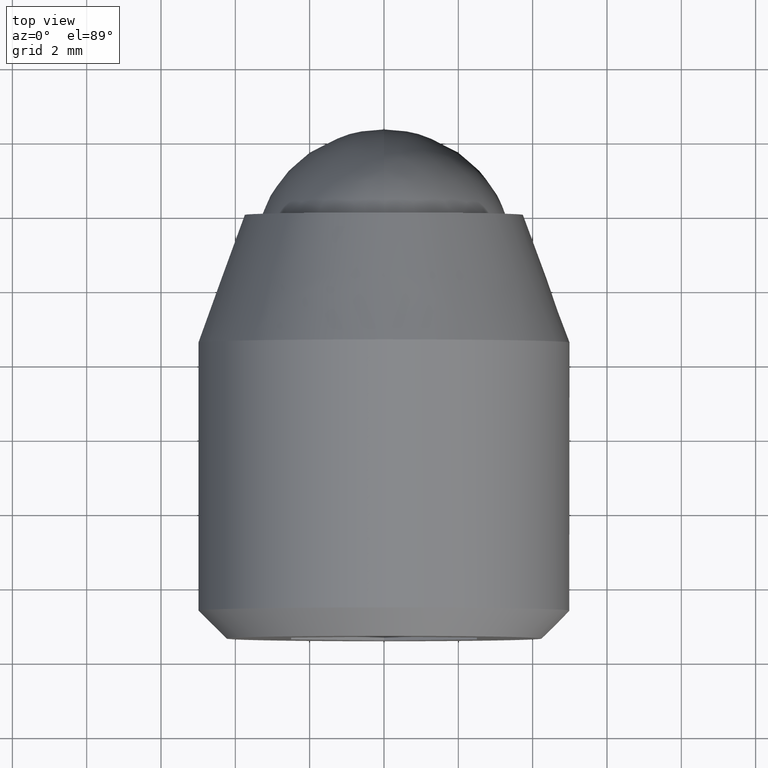
[diagram: clean part render]
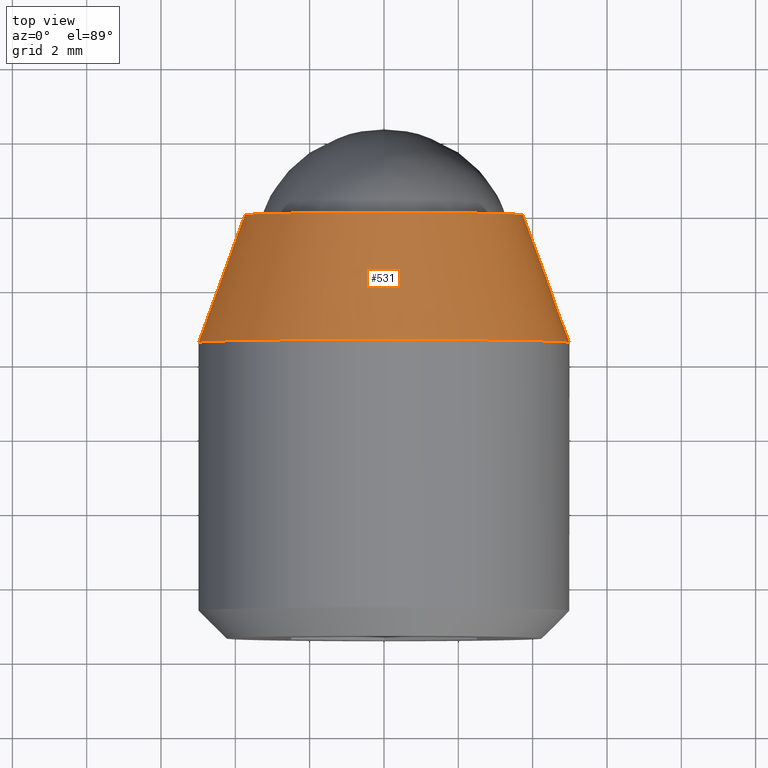
[diagram: same view with one face highlighted and labeled with its STEP entity id]
A machine part, top view. The second image highlights one B-rep face of the part: STEP entity #531.
In plain terms, the highlighted face is a freeform B-spline surface patch.
Its self-contained STEP definition (entity closure, byte-faithful):
#295=CARTESIAN_POINT('',(4.965046728884618,-3.434343137729694,-0.590166859848394));
#296=VERTEX_POINT('',#295);
#310=CARTESIAN_POINT('',(0.0,-3.434347000000000,4.999999999999999));
#311=VERTEX_POINT('',#310);
#312=CARTESIAN_POINT('',(4.965046728884618,-3.434343137729695,-0.590166859848394));
#313=CARTESIAN_POINT('',(4.999998640787238,-3.434343239309385,-0.296118341019559));
#314=CARTESIAN_POINT('',(4.999998682123200,-3.434343353678355,0.000000156648517));
#315=CARTESIAN_POINT('',(4.999999380086369,-3.434345284813507,5.000000073685605));
#316=CARTESIAN_POINT('',(0.0,-3.434347000000000,4.999999999999999));
#324=(BOUNDED_CURVE()B_SPLINE_CURVE(2,(#312,#313,#314,#315,#316),.UNSPECIFIED.,.F.,.U.)B_SPLINE_CURVE_WITH_KNOTS((3,2,3),(0.229562614691060,0.250000000000000,0.500000000000000),.UNSPECIFIED.)CURVE()GEOMETRIC_REPRESENTATION_ITEM()RATIONAL_B_SPLINE_CURVE((0.956027030897666,0.976056113730936,1.0,0.707106781186548,1.0))REPRESENTATION_ITEM(''));
#325=EDGE_CURVE('',#296,#311,#324,.T.);
#327=CARTESIAN_POINT('',(-4.990673676557385,-3.434344828327391,0.305241382882670));
#328=VERTEX_POINT('',#327);
#329=CARTESIAN_POINT('',(0.0,-3.434347000000000,4.999999999999999));
#330=CARTESIAN_POINT('',(-4.703531355959481,-3.434345914163695,4.999999987935962));
#331=CARTESIAN_POINT('',(-4.990673676557386,-3.434344828327392,0.305241382882670));
#339=(BOUNDED_CURVE()B_SPLINE_CURVE(2,(#329,#330,#331),.UNSPECIFIED.,.F.,.U.)B_SPLINE_CURVE_WITH_KNOTS((3,3),(0.500000000000000,0.739333006865172),.UNSPECIFIED.)CURVE()GEOMETRIC_REPRESENTATION_ITEM()RATIONAL_B_SPLINE_CURVE((1.0,0.719603941003831,0.976072137309239))REPRESENTATION_ITEM(''));
#340=EDGE_CURVE('',#311,#328,#339,.T.);
#461=CARTESIAN_POINT('',(3.692754176164883,0.085858675000000,-0.438939810129821));
#462=CARTESIAN_POINT('',(3.705316444949502,0.085858675000000,-0.333254772122480));
#463=CARTESIAN_POINT('',(3.711813781631317,0.085858675000000,-0.227024256395250));
#464=CARTESIAN_POINT('',(3.938838038026567,0.085858675000000,3.484789525236066));
#465=CARTESIAN_POINT('',(0.227024256395249,0.085858675000000,3.711813781631316));
#466=CARTESIAN_POINT('',(-3.484789525236068,0.085858675000000,3.938838038026566));
#467=CARTESIAN_POINT('',(-3.711813781631317,0.085858675000000,0.227024256395249));
#468=CARTESIAN_POINT('',(4.996854968209667,-3.522352141875001,-0.593951957362642));
#469=CARTESIAN_POINT('',(5.013853618050365,-3.522352141875000,-0.450944114966574));
#470=CARTESIAN_POINT('',(5.022645497371283,-3.522352141875000,-0.307198158706261));
#471=CARTESIAN_POINT('',(5.329843656077543,-3.522352141875000,4.715447338665021));
#472=CARTESIAN_POINT('',(0.307198158706261,-3.522352141875000,5.022645497371282));
#473=CARTESIAN_POINT('',(-4.715447338665021,-3.522352141875000,5.329843656077543));
#474=CARTESIAN_POINT('',(-5.022645497371283,-3.522352141875000,0.307198158706260));
#482=(BOUNDED_SURFACE()B_SPLINE_SURFACE(2,1,((#461,#468),(#462,#469),(#463,#470),(#464,#471),(#465,#472),(#466,#473),(#467,#474)),.UNSPECIFIED.,.F.,.F.,.U.)B_SPLINE_SURFACE_WITH_KNOTS((3,2,2,3),(2,2),(0.0,0.333493694405638,8.670836054546589,17.008178414687539),(0.0,3.839777720209247),.UNSPECIFIED.)GEOMETRIC_REPRESENTATION_ITEM()RATIONAL_B_SPLINE_SURFACE(((0.977505800795127,0.977505800795127),(0.988284271247462,0.988284271247462),(1.0,1.0),(0.707106781186548,0.707106781186548),(1.0,1.0),(0.707106781186548,0.707106781186548),(1.0,1.0)))REPRESENTATION_ITEM('')SURFACE());
#483=ORIENTED_EDGE('',*,*,#325,.F.);
#484=CARTESIAN_POINT('',(3.723785501493592,0.000000950687347,-0.442627319198808));
#485=VERTEX_POINT('',#484);
#486=CARTESIAN_POINT('',(3.723785501493592,0.000000950687347,-0.442627319198808));
#487=CARTESIAN_POINT('',(4.965046728884618,-3.434343137729694,-0.590166859848394));
#488=QUASI_UNIFORM_CURVE('',1,(#486,#487),.UNSPECIFIED.,.F.,.U.);
#489=EDGE_CURVE('',#485,#296,#488,.T.);
#490=ORIENTED_EDGE('',*,*,#489,.F.);
#491=CARTESIAN_POINT('',(0.0,0.0,3.749999999999999));
#492=VERTEX_POINT('',#491);
#493=CARTESIAN_POINT('',(3.723785501493592,0.000000950687347,-0.442627319198808));
#494=CARTESIAN_POINT('',(3.749999665433810,0.000000925683677,-0.222089893574421));
#495=CARTESIAN_POINT('',(3.749999675608583,0.000000897531931,0.000000038558746));
#496=CARTESIAN_POINT('',(3.749999847410168,0.000000422188258,3.750000018137571));
#497=CARTESIAN_POINT('',(0.0,0.0,3.749999999999999));
#505=(BOUNDED_CURVE()B_SPLINE_CURVE(2,(#493,#494,#495,#496,#497),.UNSPECIFIED.,.F.,.U.)B_SPLINE_CURVE_WITH_KNOTS((3,2,3),(0.229562519804582,0.250000000000000,0.500000000000000),.UNSPECIFIED.)CURVE()GEOMETRIC_REPRESENTATION_ITEM()RATIONAL_B_SPLINE_CURVE((0.956026844916118,0.976056002564511,1.0,0.707106781186547,1.0))REPRESENTATION_ITEM(''));
#506=EDGE_CURVE('',#485,#492,#505,.T.);
#507=ORIENTED_EDGE('',*,*,#506,.T.);
#508=CARTESIAN_POINT('',(-3.743004912551026,0.000001996952542,0.228929625386434));
#509=VERTEX_POINT('',#508);
#510=CARTESIAN_POINT('',(0.0,0.0,3.749999999999999));
#511=CARTESIAN_POINT('',(-3.527649610390469,0.000000998476271,3.749999977814210));
#512=CARTESIAN_POINT('',(-3.743004912551026,0.000001996952542,0.228929625386434));
#520=(BOUNDED_CURVE()B_SPLINE_CURVE(2,(#510,#511,#512),.UNSPECIFIED.,.F.,.U.)B_SPLINE_CURVE_WITH_KNOTS((3,3),(0.500000000000000,0.739333070734599),.UNSPECIFIED.)CURVE()GEOMETRIC_REPRESENTATION_ITEM()RATIONAL_B_SPLINE_CURVE((1.0,0.719603866176142,0.976072274193673))REPRESENTATION_ITEM(''));
#521=EDGE_CURVE('',#492,#509,#520,.T.);
#522=ORIENTED_EDGE('',*,*,#521,.T.);
#523=CARTESIAN_POINT('',(-3.743004912551026,0.000001996952542,0.228929625386434));
#524=CARTESIAN_POINT('',(-4.990673676557385,-3.434344828327391,0.305241382882670));
#525=QUASI_UNIFORM_CURVE('',1,(#523,#524),.UNSPECIFIED.,.F.,.U.);
#526=EDGE_CURVE('',#509,#328,#525,.T.);
#527=ORIENTED_EDGE('',*,*,#526,.T.);
#528=ORIENTED_EDGE('',*,*,#340,.F.);
#529=EDGE_LOOP('',(#483,#490,#507,#522,#527,#528));
#530=FACE_OUTER_BOUND('',#529,.T.);
#531=ADVANCED_FACE('',(#530),#482,.T.);